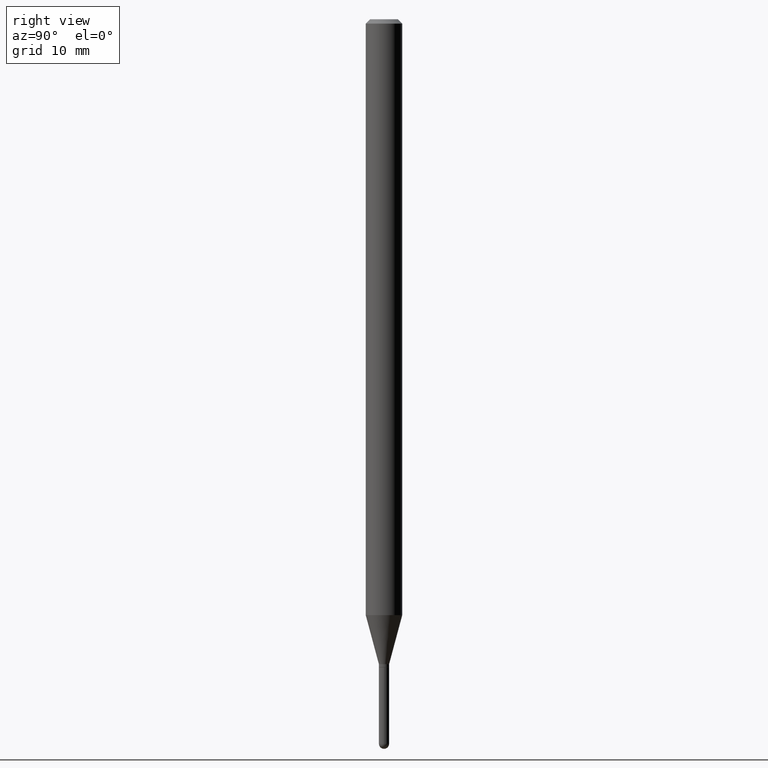
[diagram: clean part render]
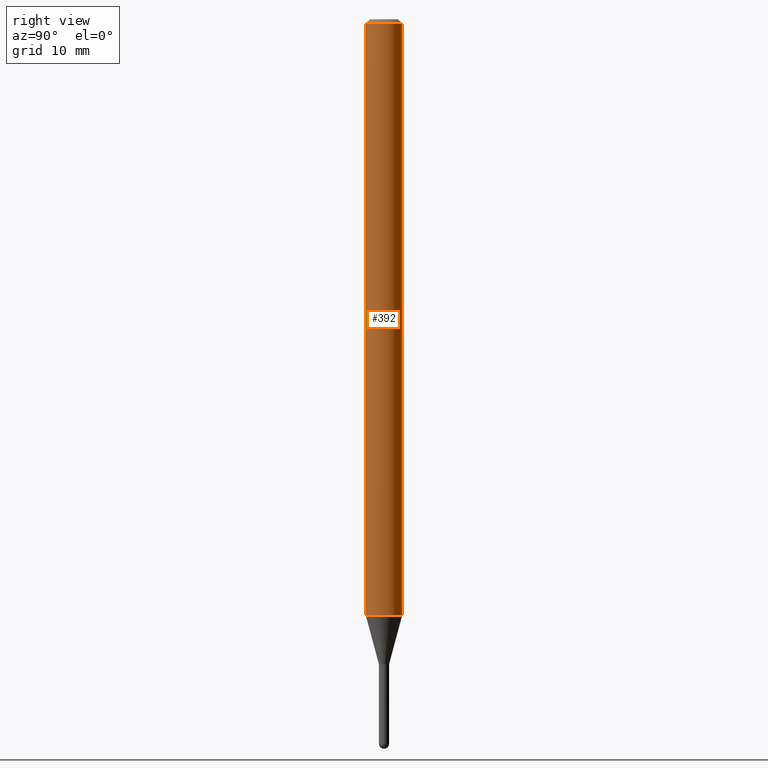
[diagram: same view with one face highlighted and labeled with its STEP entity id]
A machine part, right view. The second image highlights one B-rep face of the part: STEP entity #392.
In plain terms, the highlighted cylindrical surface (edge-blend (fillet) strip) has radius 1.5875 mm, axis along (-0, 0, 1).
Its self-contained STEP definition (entity closure, byte-faithful):
#14 = LINE ( 'NONE', #418, #345 ) ;
#22 = DIRECTION ( 'NONE',  ( -2.445449650691490945E-29, 3.491508770600309378E-15, 1.000000000000000000 ) ) ;
#58 = ORIENTED_EDGE ( 'NONE', *, *, #455, .T. ) ;
#60 = DIRECTION ( 'NONE',  ( -2.445449650691490945E-29, 3.491508770600309378E-15, 1.000000000000000000 ) ) ;
#70 = VERTEX_POINT ( 'NONE', #264 ) ;
#71 = CARTESIAN_POINT ( 'NONE',  ( 4.993749322560243960E-29, -7.129862417313810105E-15, -2.042057713659399809 ) ) ;
#80 = VERTEX_POINT ( 'NONE', #419 ) ;
#90 = EDGE_LOOP ( 'NONE', ( #96, #58, #478, #308 ) ) ;
#91 = EDGE_CURVE ( 'NONE', #315, #70, #158, .T. ) ;
#92 = LINE ( 'NONE', #215, #159 ) ;
#96 = ORIENTED_EDGE ( 'NONE', *, *, #91, .T. ) ;
#108 = FACE_OUTER_BOUND ( 'NONE', #90, .T. ) ;
#112 = VERTEX_POINT ( 'NONE', #223 ) ;
#120 = EDGE_CURVE ( 'NONE', #112, #80, #483, .T. ) ;
#158 = CIRCLE ( 'NONE', #322, 0.06250000000000000000 ) ;
#159 = VECTOR ( 'NONE', #446, 39.37007874015748143 ) ;
#175 = DIRECTION ( 'NONE',  ( -2.445449650691490665E-29, 3.491508770600308983E-15, 1.000000000000000000 ) ) ;
#204 = CARTESIAN_POINT ( 'NONE',  ( 0.000000000000000000, 0.000000000000000000, 0.000000000000000000 ) ) ;
#215 = CARTESIAN_POINT ( 'NONE',  ( 4.440892098500625669E-16, 0.06250000000000000000, -2.182192981625193361E-16 ) ) ;
#223 = CARTESIAN_POINT ( 'NONE',  ( -4.364351673553912750E-16, -0.06250000000000005551, -0.01499999999999979128 ) ) ;
#259 = AXIS2_PLACEMENT_3D ( 'NONE', #204, #441, #288 ) ;
#264 = CARTESIAN_POINT ( 'NONE',  ( 4.440892098501123144E-16, 0.06249999999999285294, -2.042057713659400253 ) ) ;
#274 = CYLINDRICAL_SURFACE ( 'NONE', #259, 0.06250000000000000000 ) ;
#288 = DIRECTION ( 'NONE',  ( -6.982962677686265922E-15, -1.000000000000000000, 3.491508770600309378E-15 ) ) ;
#308 = ORIENTED_EDGE ( 'NONE', *, *, #477, .F. ) ;
#310 = CARTESIAN_POINT ( 'NONE',  ( -4.364351673553418233E-16, -0.06250000000000713318, -2.042057713659399809 ) ) ;
#315 = VERTEX_POINT ( 'NONE', #310 ) ;
#322 = AXIS2_PLACEMENT_3D ( 'NONE', #71, #60, #496 ) ;
#345 = VECTOR ( 'NONE', #175, 39.37007874015748143 ) ;
#356 = CARTESIAN_POINT ( 'NONE',  ( 3.668174476037238870E-31, -5.237263155900467617E-17, -0.01500000000000000812 ) ) ;
#370 = AXIS2_PLACEMENT_3D ( 'NONE', #356, #22, #502 ) ;
#392 = ADVANCED_FACE ( 'NONE', ( #108 ), #274, .T. ) ;
#418 = CARTESIAN_POINT ( 'NONE',  ( -4.364351673553916201E-16, -0.06250000000000000000, 2.182192981625193361E-16 ) ) ;
#419 = CARTESIAN_POINT ( 'NONE',  ( 4.440892098501129061E-16, 0.06249999999999995837, -0.01500000000000022669 ) ) ;
#441 = DIRECTION ( 'NONE',  ( -2.445449650691490945E-29, 3.491508770600309378E-15, 1.000000000000000000 ) ) ;
#446 = DIRECTION ( 'NONE',  ( -2.445449650691490665E-29, 3.491508770600308983E-15, 1.000000000000000000 ) ) ;
#455 = EDGE_CURVE ( 'NONE', #70, #80, #92, .T. ) ;
#477 = EDGE_CURVE ( 'NONE', #315, #112, #14, .T. ) ;
#478 = ORIENTED_EDGE ( 'NONE', *, *, #120, .F. ) ;
#483 = CIRCLE ( 'NONE', #370, 0.06250000000000000000 ) ;
#496 = DIRECTION ( 'NONE',  ( -6.982962677686265922E-15, -1.000000000000000000, 4.370956789862821150E-15 ) ) ;
#502 = DIRECTION ( 'NONE',  ( -6.982962677686265922E-15, -1.000000000000000000, 3.483106191921935554E-15 ) ) ;